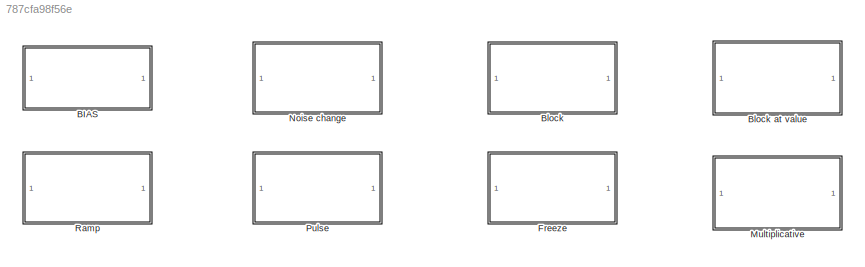
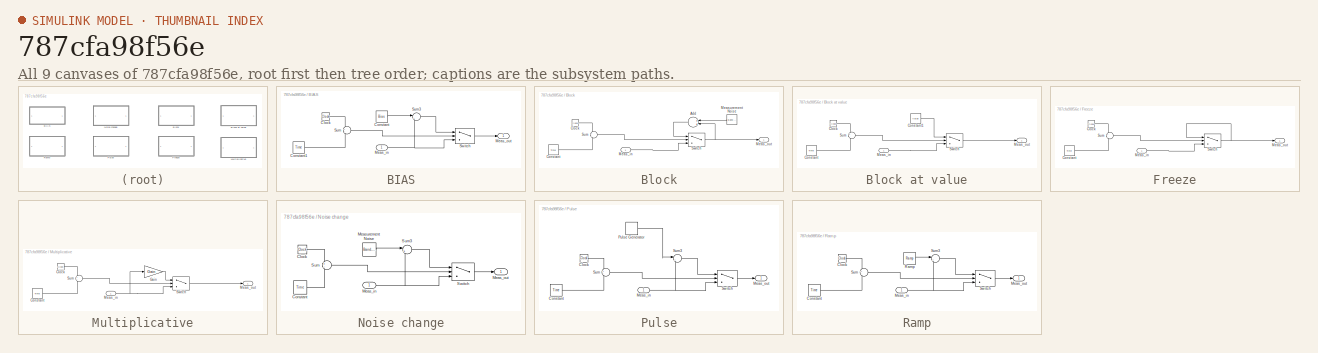
[diagram: thumbnail index - all 9 canvases of the model, root first then tree order]
MODEL slx_787cfa98f56e
KIND library
CONFIG AbsTol = auto
CONFIG EnableMultiTasking = off
CONFIG FixedStep = auto
CONFIG MaxStep = auto
CONFIG MinStep = auto
CONFIG RelTol = 1e-3
CONFIG SampleTimeConstraint = Unconstrained
CONFIG Solver = VariableStepAuto
CONFIG SolverName = VariableStepAuto
CONFIG StartTime = 0.0
CONFIG StopTime = 10.0
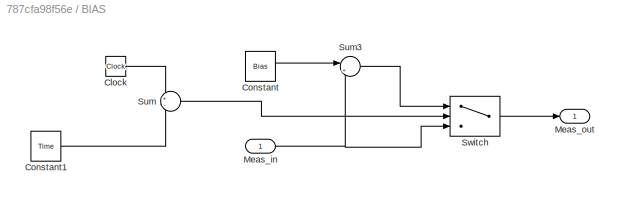
BLOCK [SubSystem] BIAS
  Ports = [1, 1]
  RequestExecContextInheritance = off
BLOCK [Clock] BIAS/Clock
BLOCK [Constant] BIAS/Constant
  Value = Bias
BLOCK [Constant] BIAS/Constant1
  Value = Time
BLOCK [Inport] BIAS/Meas_in 
  IconDisplay = Port number
BLOCK [Outport] BIAS/Meas_out
  IconDisplay = Port number
BLOCK [Sum] BIAS/Sum
  IconShape = round
  InputSameDT = off
  Inputs = +-
  OutDataTypeStr = Inherit: Inherit via internal rule
  Ports = [2, 1]
  SaturateOnIntegerOverflow = off
BLOCK [Sum] BIAS/Sum3
  IconShape = round
  InputSameDT = off
  Inputs = |++
  OutDataTypeStr = Inherit: Inherit via internal rule
  Ports = [2, 1]
  SaturateOnIntegerOverflow = off
BLOCK [Switch] BIAS/Switch
  Criteria = u2 > Threshold
  InputSameDT = off
  SaturateOnIntegerOverflow = off
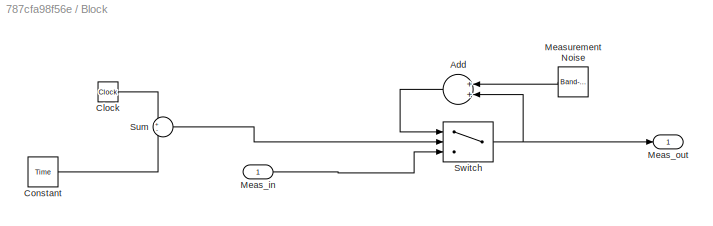
BLOCK [SubSystem] Block
  Ports = [1, 1]
  RequestExecContextInheritance = off
BLOCK [SubSystem] Block at value
  Ports = [1, 1]
  RequestExecContextInheritance = off
BLOCK [Clock] Block at value/Clock
BLOCK [Constant] Block at value/Constant
  Value = Time
BLOCK [Constant] Block at value/Constant1
  Value = Value
BLOCK [Inport] Block at value/Meas_in 
  IconDisplay = Port number
BLOCK [Outport] Block at value/Meas_out
  IconDisplay = Port number
BLOCK [Sum] Block at value/Sum
  IconShape = round
  InputSameDT = off
  Inputs = +-
  OutDataTypeStr = Inherit: Inherit via internal rule
  Ports = [2, 1]
  SaturateOnIntegerOverflow = off
BLOCK [Switch] Block at value/Switch
  Criteria = u2 > Threshold
  InputSameDT = off
  SaturateOnIntegerOverflow = off
BLOCK [Sum] Block/Add
  InputSameDT = off
  OutDataTypeStr = Inherit: Inherit via internal rule
  Ports = [2, 1]
  SaturateOnIntegerOverflow = off
BLOCK [Clock] Block/Clock
BLOCK [Constant] Block/Constant
  Value = Time
BLOCK [Inport] Block/Meas_in 
  IconDisplay = Port number
BLOCK [Outport] Block/Meas_out
  IconDisplay = Port number
BLOCK [Reference] Block/Measurement Noise  REF=simulink/Sources/Band-Limited
White Noise
  Ports = [0, 1]
  SourceBlock = simulink/Sources/Band-Limited\nWhite Noise
  SourceProductBaseCode = SL
  SourceProductName = Simulink
  SourceType = Band-Limited White Noise.
BLOCK [Sum] Block/Sum
  IconShape = round
  InputSameDT = off
  Inputs = +-
  OutDataTypeStr = Inherit: Inherit via internal rule
  Ports = [2, 1]
  SaturateOnIntegerOverflow = off
BLOCK [Switch] Block/Switch
  Criteria = u2 > Threshold
  InputSameDT = off
  SaturateOnIntegerOverflow = off
BLOCK [SubSystem] Freeze
  Ports = [1, 1]
  RequestExecContextInheritance = off
BLOCK [Clock] Freeze/Clock
BLOCK [Constant] Freeze/Constant
  Value = Time
BLOCK [Inport] Freeze/Meas_in 
  IconDisplay = Port number
BLOCK [Outport] Freeze/Meas_out
  IconDisplay = Port number
BLOCK [Sum] Freeze/Sum
  IconShape = round
  InputSameDT = off
  Inputs = +-
  OutDataTypeStr = Inherit: Inherit via internal rule
  Ports = [2, 1]
  SaturateOnIntegerOverflow = off
BLOCK [Switch] Freeze/Switch
  Criteria = u2 > Threshold
  InputSameDT = off
  SaturateOnIntegerOverflow = off
BLOCK [SubSystem] Multiplicative
  Ports = [1, 1]
  RequestExecContextInheritance = off
BLOCK [Clock] Multiplicative/Clock
BLOCK [Constant] Multiplicative/Constant
  Value = Time
BLOCK [Gain] Multiplicative/Gain
  Gain = Gain
  OutDataTypeStr = Inherit: Inherit via internal rule
  ParamDataTypeStr = Inherit: Inherit via internal rule
  SaturateOnIntegerOverflow = off
BLOCK [Inport] Multiplicative/Meas_in 
  IconDisplay = Port number
BLOCK [Outport] Multiplicative/Meas_out
  IconDisplay = Port number
BLOCK [Sum] Multiplicative/Sum
  IconShape = round
  InputSameDT = off
  Inputs = +-
  OutDataTypeStr = Inherit: Inherit via internal rule
  Ports = [2, 1]
  SaturateOnIntegerOverflow = off
BLOCK [Switch] Multiplicative/Switch
  Criteria = u2 > Threshold
  InputSameDT = off
  SaturateOnIntegerOverflow = off
BLOCK [SubSystem] Noise change
  Ports = [1, 1]
  RequestExecContextInheritance = off
BLOCK [Clock] Noise change/Clock
BLOCK [Constant] Noise change/Constant
  Value = Time
BLOCK [Inport] Noise change/Meas_in 
  IconDisplay = Port number
BLOCK [Outport] Noise change/Meas_out
  IconDisplay = Port number
BLOCK [Reference] Noise change/Measurement Noise  REF=simulink/Sources/Band-Limited
White Noise
  Ports = [0, 1]
  SourceBlock = simulink/Sources/Band-Limited\nWhite Noise
  SourceProductBaseCode = SL
  SourceProductName = Simulink
  SourceType = Band-Limited White Noise.
BLOCK [Sum] Noise change/Sum
  IconShape = round
  InputSameDT = off
  Inputs = +-
  OutDataTypeStr = Inherit: Inherit via internal rule
  Ports = [2, 1]
  SaturateOnIntegerOverflow = off
BLOCK [Sum] Noise change/Sum3
  IconShape = round
  InputSameDT = off
  Inputs = |++
  OutDataTypeStr = Inherit: Inherit via internal rule
  Ports = [2, 1]
  SaturateOnIntegerOverflow = off
BLOCK [Switch] Noise change/Switch
  Criteria = u2 > Threshold
  InputSameDT = off
  SaturateOnIntegerOverflow = off
BLOCK [SubSystem] Pulse
  Ports = [1, 1]
  RequestExecContextInheritance = off
BLOCK [Clock] Pulse/Clock
BLOCK [Constant] Pulse/Constant
  Value = Time
BLOCK [Inport] Pulse/Meas_in 
  IconDisplay = Port number
BLOCK [Outport] Pulse/Meas_out
  IconDisplay = Port number
BLOCK [DiscretePulseGenerator] Pulse/Pulse Generator
  Amplitude = Pulse_value
  Period = Pulse_periode
  Ports = [0, 1]
  PulseWidth = Pulse_width
  SampleTime = Ts
BLOCK [Sum] Pulse/Sum
  IconShape = round
  InputSameDT = off
  Inputs = +-
  OutDataTypeStr = Inherit: Inherit via internal rule
  Ports = [2, 1]
  SaturateOnIntegerOverflow = off
BLOCK [Sum] Pulse/Sum3
  IconShape = round
  InputSameDT = off
  Inputs = |++
  OutDataTypeStr = Inherit: Inherit via internal rule
  Ports = [2, 1]
  SaturateOnIntegerOverflow = off
BLOCK [Switch] Pulse/Switch
  Criteria = u2 > Threshold
  InputSameDT = off
  SaturateOnIntegerOverflow = off
BLOCK [SubSystem] Ramp
  Ports = [1, 1]
  RequestExecContextInheritance = off
BLOCK [Clock] Ramp/Clock
BLOCK [Constant] Ramp/Constant
  Value = Time
BLOCK [Inport] Ramp/Meas_in 
  IconDisplay = Port number
BLOCK [Outport] Ramp/Meas_out
  IconDisplay = Port number
BLOCK [Reference] Ramp/Ramp  REF=simulink/Sources/Ramp
  Ports = [0, 1]
  SourceBlock = simulink/Sources/Ramp
  SourceProductBaseCode = SL
  SourceProductName = Simulink
  SourceType = Ramp
BLOCK [Sum] Ramp/Sum
  IconShape = round
  InputSameDT = off
  Inputs = +-
  OutDataTypeStr = Inherit: Inherit via internal rule
  Ports = [2, 1]
  SaturateOnIntegerOverflow = off
BLOCK [Sum] Ramp/Sum3
  IconShape = round
  InputSameDT = off
  Inputs = |++
  OutDataTypeStr = Inherit: Inherit via internal rule
  Ports = [2, 1]
  SaturateOnIntegerOverflow = off
BLOCK [Switch] Ramp/Switch
  Criteria = u2 > Threshold
  InputSameDT = off
  SaturateOnIntegerOverflow = off
LINE BIAS/Clock:1 -> BIAS/Sum:1
LINE BIAS/Constant1:1 -> BIAS/Sum:2
LINE BIAS/Constant:1 -> BIAS/Sum3:1
NET BIAS/Meas_in :1 -> BIAS/Sum3:2, BIAS/Switch:3
LINE BIAS/Sum3:1 -> BIAS/Switch:1
LINE BIAS/Sum:1 -> BIAS/Switch:2
LINE BIAS/Switch:1 -> BIAS/Meas_out:1
LINE Block at value/Clock:1 -> Block at value/Sum:1
LINE Block at value/Constant1:1 -> Block at value/Switch:1
LINE Block at value/Constant:1 -> Block at value/Sum:2
LINE Block at value/Meas_in :1 -> Block at value/Switch:3
LINE Block at value/Sum:1 -> Block at value/Switch:2
LINE Block at value/Switch:1 -> Block at value/Meas_out:1
LINE Block/Add:1 -> Block/Switch:1
LINE Block/Clock:1 -> Block/Sum:1
LINE Block/Constant:1 -> Block/Sum:2
LINE Block/Meas_in :1 -> Block/Switch:3
LINE Block/Measurement Noise:1 -> Block/Add:1
LINE Block/Sum:1 -> Block/Switch:2
NET Block/Switch:1 -> Block/Add:2, Block/Meas_out:1
LINE Freeze/Clock:1 -> Freeze/Sum:1
LINE Freeze/Constant:1 -> Freeze/Sum:2
LINE Freeze/Meas_in :1 -> Freeze/Switch:3
LINE Freeze/Sum:1 -> Freeze/Switch:2
NET Freeze/Switch:1 -> Freeze/Meas_out:1, Freeze/Switch:1
LINE Multiplicative/Clock:1 -> Multiplicative/Sum:1
LINE Multiplicative/Constant:1 -> Multiplicative/Sum:2
LINE Multiplicative/Gain:1 -> Multiplicative/Switch:1
NET Multiplicative/Meas_in :1 -> Multiplicative/Gain:1, Multiplicative/Switch:3
LINE Multiplicative/Sum:1 -> Multiplicative/Switch:2
LINE Multiplicative/Switch:1 -> Multiplicative/Meas_out:1
LINE Noise change/Clock:1 -> Noise change/Sum:1
LINE Noise change/Constant:1 -> Noise change/Sum:2
NET Noise change/Meas_in :1 -> Noise change/Sum3:2, Noise change/Switch:3
LINE Noise change/Measurement Noise:1 -> Noise change/Sum3:1
LINE Noise change/Sum3:1 -> Noise change/Switch:1
LINE Noise change/Sum:1 -> Noise change/Switch:2
LINE Noise change/Switch:1 -> Noise change/Meas_out:1
LINE Pulse/Clock:1 -> Pulse/Sum:1
LINE Pulse/Constant:1 -> Pulse/Sum:2
NET Pulse/Meas_in :1 -> Pulse/Sum3:2, Pulse/Switch:3
LINE Pulse/Pulse Generator:1 -> Pulse/Sum3:1
LINE Pulse/Sum3:1 -> Pulse/Switch:1
LINE Pulse/Sum:1 -> Pulse/Switch:2
LINE Pulse/Switch:1 -> Pulse/Meas_out:1
LINE Ramp/Clock:1 -> Ramp/Sum:1
LINE Ramp/Constant:1 -> Ramp/Sum:2
NET Ramp/Meas_in :1 -> Ramp/Sum3:2, Ramp/Switch:3
LINE Ramp/Ramp:1 -> Ramp/Sum3:1
LINE Ramp/Sum3:1 -> Ramp/Switch:1
LINE Ramp/Sum:1 -> Ramp/Switch:2
LINE Ramp/Switch:1 -> Ramp/Meas_out:1
note: NET lines group one-source signal fan-out (src -> all destinations, sorted); 1:1 wires keep LINE
